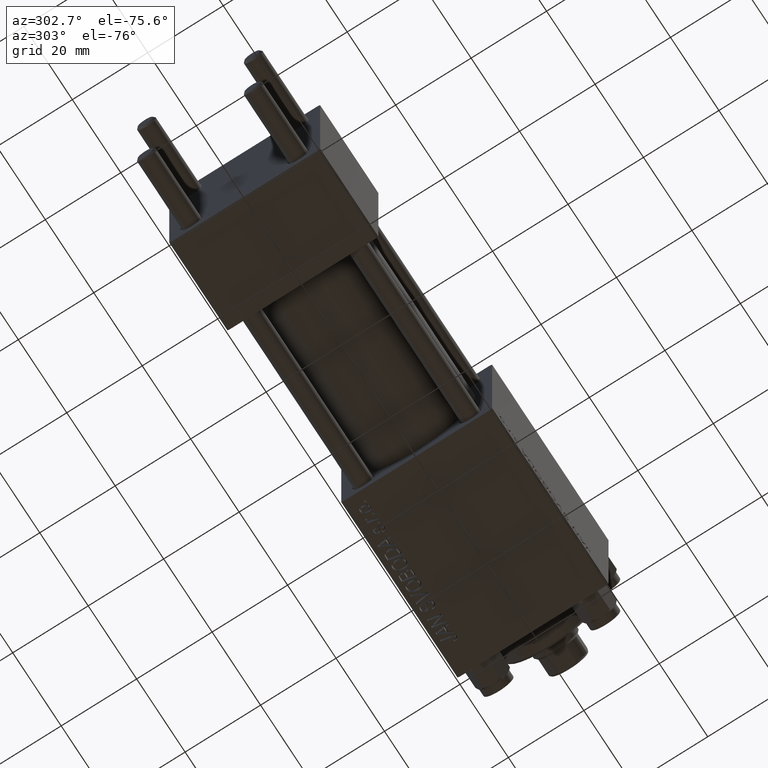
[diagram: clean part render]
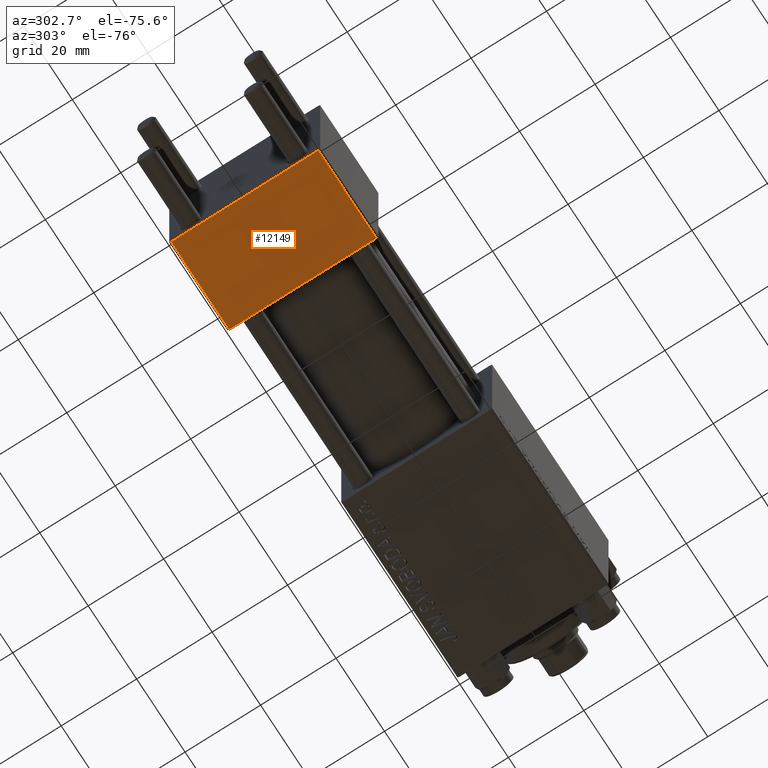
[diagram: same view with one face highlighted and labeled with its STEP entity id]
A machine part, auxiliary view. The second image highlights one B-rep face of the part: STEP entity #12149.
In plain terms, the highlighted planar face has unit normal (0, -0, -1).
Its self-contained STEP definition (entity closure, byte-faithful):
#1189 = CARTESIAN_POINT ( 'NONE',  ( 24.00000000000000000, 20.00000000000000000, -20.00000000000000711 ) ) ;
#2421 = DIRECTION ( 'NONE',  ( -1.000000000000000000, 0.000000000000000000, 0.000000000000000000 ) ) ;
#3191 = CARTESIAN_POINT ( 'NONE',  ( 0.000000000000000000, 19.50000000000000711, -20.00000000000000711 ) ) ;
#3213 = LINE ( 'NONE', #1189, #3944 ) ;
#3944 = VECTOR ( 'NONE', #8763, 1000.000000000000000 ) ;
#6035 = ORIENTED_EDGE ( 'NONE', *, *, #27334, .T. ) ;
#7191 = VECTOR ( 'NONE', #28564, 1000.000000000000000 ) ;
#8763 = DIRECTION ( 'NONE',  ( 0.000000000000000000, -1.000000000000000000, 1.734723475976807094E-16 ) ) ;
#12149 = ADVANCED_FACE ( 'NONE', ( #32180 ), #47564, .T. ) ;
#13809 = EDGE_CURVE ( 'NONE', #48851, #40397, #3213, .T. ) ;
#18172 = VERTEX_POINT ( 'NONE', #3191 ) ;
#19252 = CARTESIAN_POINT ( 'NONE',  ( 24.00000000000000000, -19.50000000000000711, -20.00000000000000000 ) ) ;
#21718 = CARTESIAN_POINT ( 'NONE',  ( 24.00000000000000000, 19.50000000000000711, -20.00000000000000711 ) ) ;
#22043 = ORIENTED_EDGE ( 'NONE', *, *, #13809, .T. ) ;
#24380 = CARTESIAN_POINT ( 'NONE',  ( 0.000000000000000000, 20.00000000000000000, -20.00000000000000711 ) ) ;
#24584 = CARTESIAN_POINT ( 'NONE',  ( 24.00000000000000000, 20.00000000000000000, -20.00000000000000711 ) ) ;
#25503 = LINE ( 'NONE', #21718, #7191 ) ;
#27334 = EDGE_CURVE ( 'NONE', #18172, #48851, #25503, .T. ) ;
#28564 = DIRECTION ( 'NONE',  ( 1.000000000000000000, 0.000000000000000000, 0.000000000000000000 ) ) ;
#28667 = EDGE_CURVE ( 'NONE', #18172, #47428, #31972, .T. ) ;
#29608 = DIRECTION ( 'NONE',  ( 0.000000000000000000, 1.000000000000000000, -1.734723475976806848E-16 ) ) ;
#29788 = CARTESIAN_POINT ( 'NONE',  ( 0.000000000000000000, -19.50000000000000711, -20.00000000000000000 ) ) ;
#30881 = EDGE_CURVE ( 'NONE', #40397, #47428, #36788, .T. ) ;
#31972 = LINE ( 'NONE', #24380, #32283 ) ;
#32180 = FACE_OUTER_BOUND ( 'NONE', #34254, .T. ) ;
#32283 = VECTOR ( 'NONE', #47611, 1000.000000000000000 ) ;
#34254 = EDGE_LOOP ( 'NONE', ( #36885, #6035, #22043, #41679 ) ) ;
#34460 = CARTESIAN_POINT ( 'NONE',  ( 24.00000000000000000, 19.50000000000000711, -20.00000000000000711 ) ) ;
#36788 = LINE ( 'NONE', #37029, #49227 ) ;
#36885 = ORIENTED_EDGE ( 'NONE', *, *, #28667, .F. ) ;
#37029 = CARTESIAN_POINT ( 'NONE',  ( 0.000000000000000000, -19.50000000000000711, -20.00000000000000000 ) ) ;
#39987 = DIRECTION ( 'NONE',  ( 0.000000000000000000, -1.734723475976806848E-16, -1.000000000000000000 ) ) ;
#40397 = VERTEX_POINT ( 'NONE', #19252 ) ;
#41679 = ORIENTED_EDGE ( 'NONE', *, *, #30881, .T. ) ;
#47428 = VERTEX_POINT ( 'NONE', #29788 ) ;
#47475 = AXIS2_PLACEMENT_3D ( 'NONE', #24584, #39987, #29608 ) ;
#47564 = PLANE ( 'NONE',  #47475 ) ;
#47611 = DIRECTION ( 'NONE',  ( 0.000000000000000000, -1.000000000000000000, 1.734723475976807094E-16 ) ) ;
#48851 = VERTEX_POINT ( 'NONE', #34460 ) ;
#49227 = VECTOR ( 'NONE', #2421, 1000.000000000000000 ) ;